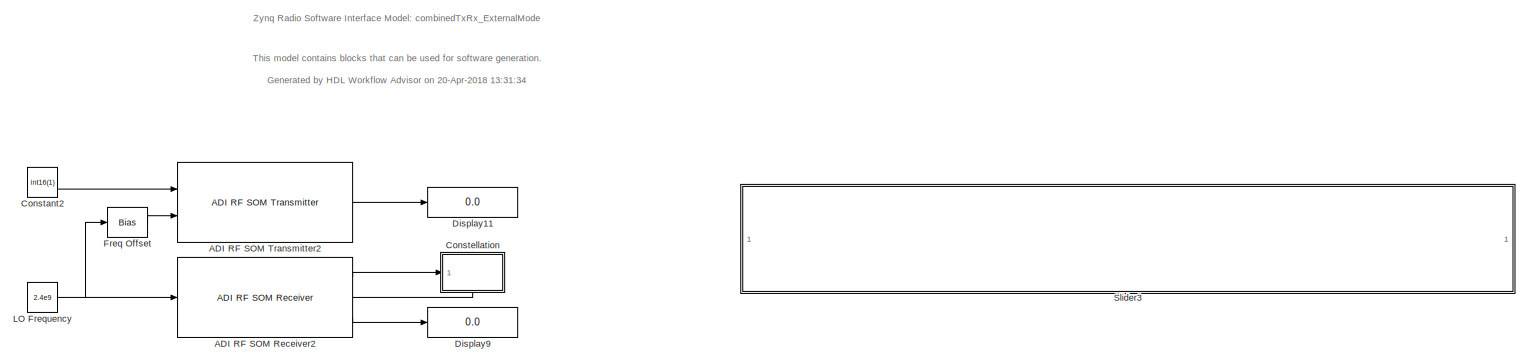
[diagram: root canvas - part 1/3, full width, top band]
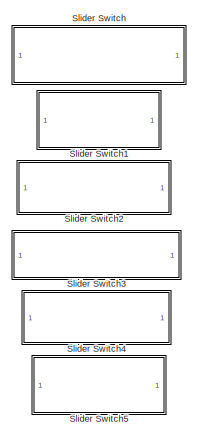
[diagram: root canvas - part 2/3, bottom left region]
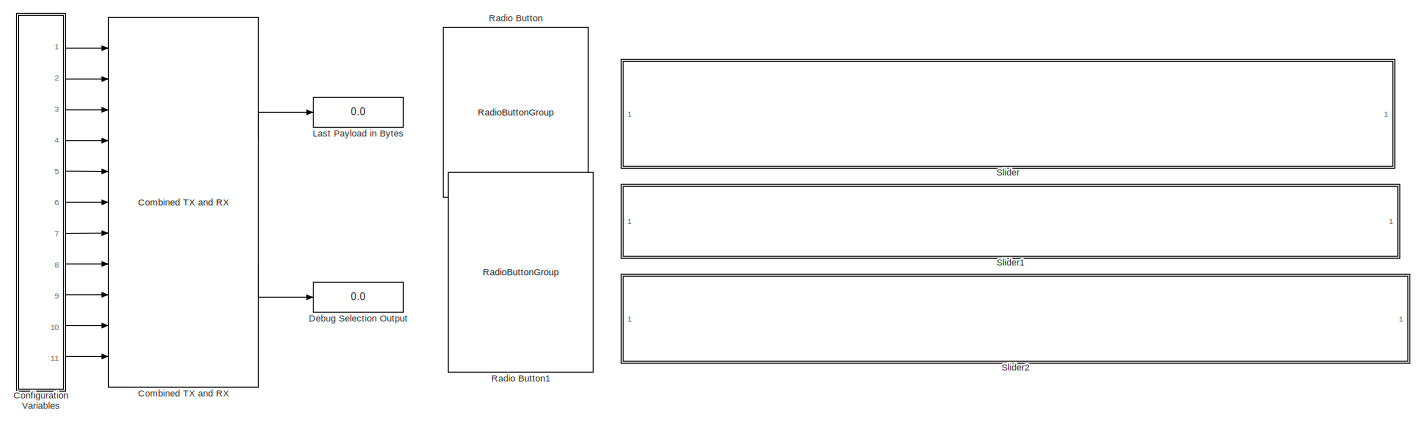
[diagram: root canvas - part 3/3, full width, bottom band]
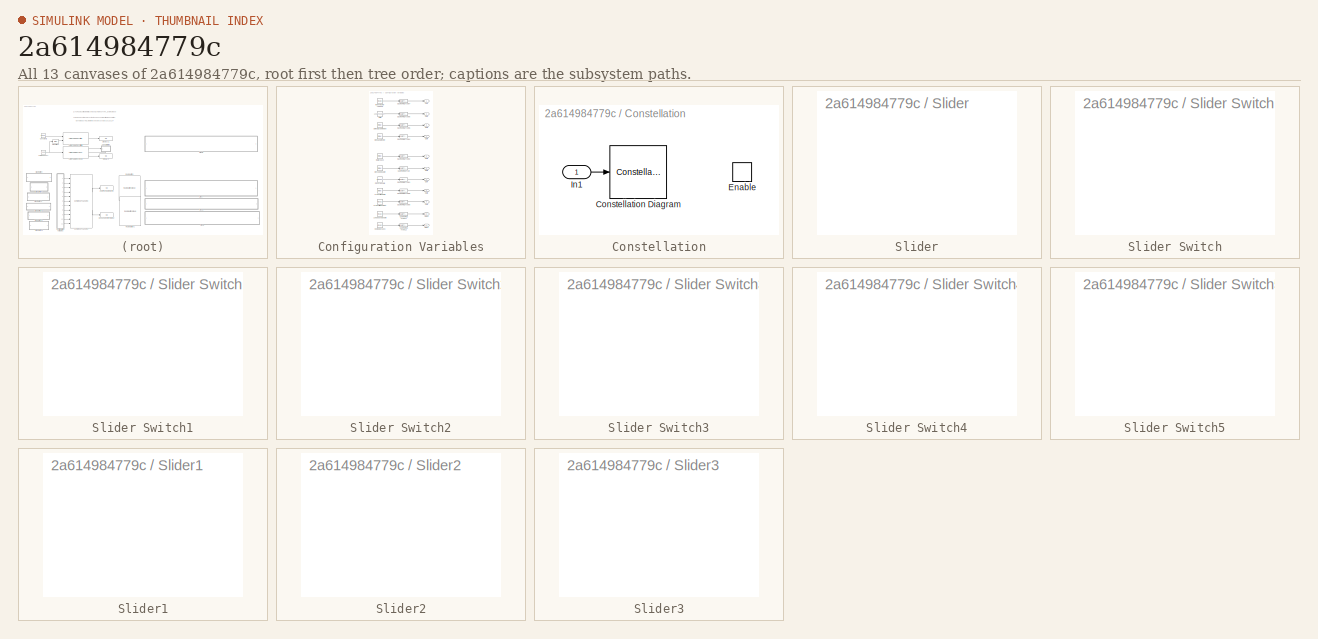
[diagram: thumbnail index - all 13 canvases of the model, root first then tree order]
MODEL slx_2a614984779c
KIND model
CONFIG AbsTol = auto
CONFIG EnableMultiTasking = off
CONFIG FixedStep = auto
CONFIG InitFcn = modelSettings\n
CONFIG MaxStep = auto
CONFIG MinStep = auto
CONFIG RelTol = 1e-3
CONFIG SampleTimeConstraint = Unconstrained
CONFIG Solver = VariableStepAuto
CONFIG SolverName = VariableStepAuto
CONFIG StartTime = 0.0
CONFIG StopTime = 10.0
BLOCK [Reference] ADI RF SOM Receiver2  REF=gm_combinedTxRx_ExternalMode_lib/ADI RF SOM
Receiver
  Ports = [1, 3]
  SourceBlock = gm_combinedTxRx_ExternalMode_lib/ADI RF SOM\nReceiver
  SourceType = comm.SDRRxZynqRadioLibIIO
BLOCK [Reference] ADI RF SOM Transmitter2  REF=gm_combinedTxRx_ExternalMode_lib/ADI RF SOM
Transmitter
  Ports = [2, 1]
  SourceBlock = gm_combinedTxRx_ExternalMode_lib/ADI RF SOM\nTransmitter
  SourceType = comm.SDRTxZynqRadioLibIIO
BLOCK [Reference] Combined TX and RX  REF=gm_combinedTxRx_ExternalMode_lib/Combined TX and RX
  Ports = [11, 2]
  SourceBlock = gm_combinedTxRx_ExternalMode_lib/Combined TX and RX
  SourceType = AXI4-Lite/AXI4 Interface
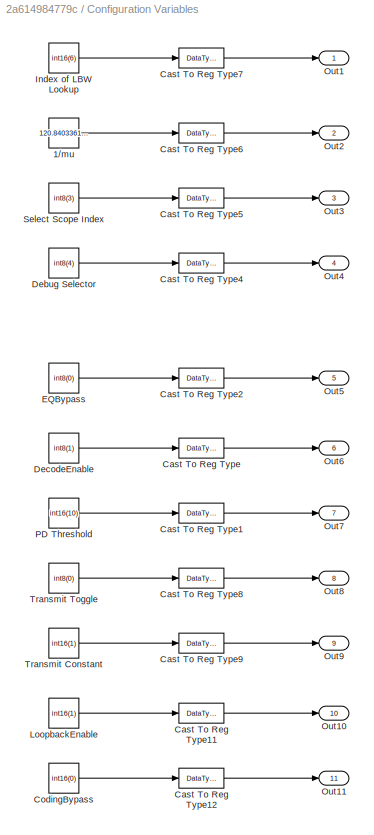
BLOCK [SubSystem] Configuration Variables
  Ports = [0, 11]
  RequestExecContextInheritance = off
  ShowPortLabels = none
  Variant = off
BLOCK [Constant] Configuration Variables/1//mu
  OutDataTypeStr = int16
  SampleTime = 1/500
  Value = 120.84033613445
BLOCK [DataTypeConversion] Configuration Variables/Cast To Reg Type
  OutDataTypeStr = uint32
  RndMeth = Floor
  SaturateOnIntegerOverflow = off
BLOCK [DataTypeConversion] Configuration Variables/Cast To Reg Type1
  OutDataTypeStr = uint32
  RndMeth = Floor
  SaturateOnIntegerOverflow = off
BLOCK [DataTypeConversion] Configuration Variables/Cast To Reg Type11
  OutDataTypeStr = uint32
  RndMeth = Floor
  SaturateOnIntegerOverflow = off
BLOCK [DataTypeConversion] Configuration Variables/Cast To Reg Type12
  OutDataTypeStr = uint32
  RndMeth = Floor
  SaturateOnIntegerOverflow = off
BLOCK [DataTypeConversion] Configuration Variables/Cast To Reg Type2
  OutDataTypeStr = uint32
  RndMeth = Floor
  SaturateOnIntegerOverflow = off
BLOCK [DataTypeConversion] Configuration Variables/Cast To Reg Type4
  OutDataTypeStr = uint32
  RndMeth = Floor
  SaturateOnIntegerOverflow = off
BLOCK [DataTypeConversion] Configuration Variables/Cast To Reg Type5
  OutDataTypeStr = uint32
  RndMeth = Floor
  SaturateOnIntegerOverflow = off
BLOCK [DataTypeConversion] Configuration Variables/Cast To Reg Type6
  OutDataTypeStr = uint32
  RndMeth = Floor
  SaturateOnIntegerOverflow = off
BLOCK [DataTypeConversion] Configuration Variables/Cast To Reg Type7
  OutDataTypeStr = uint32
  RndMeth = Floor
  SaturateOnIntegerOverflow = off
BLOCK [DataTypeConversion] Configuration Variables/Cast To Reg Type8
  OutDataTypeStr = uint32
  RndMeth = Floor
  SaturateOnIntegerOverflow = off
BLOCK [DataTypeConversion] Configuration Variables/Cast To Reg Type9
  OutDataTypeStr = uint32
  RndMeth = Floor
  SaturateOnIntegerOverflow = off
BLOCK [Constant] Configuration Variables/CodingBypass
  SampleTime = 1/500
  Value = int16(0)
BLOCK [Constant] Configuration Variables/Debug Selector
  SampleTime = 1/500
  Value = int8(4)
BLOCK [Constant] Configuration Variables/DecodeEnable
  SampleTime = 1/500
  Value = int8(1)
BLOCK [Constant] Configuration Variables/EQBypass
  SampleTime = 1/500
  Value = int8(0)
BLOCK [Constant] Configuration Variables/Index of LBW Lookup
  SampleTime = 1/500
  Value = int16(6)
BLOCK [Constant] Configuration Variables/LoopbackEnable
  SampleTime = 1/500
  Value = int16(1)
BLOCK [Outport] Configuration Variables/Out1
  IconDisplay = Port number
BLOCK [Outport] Configuration Variables/Out10
  IconDisplay = Port number
  Port = 10
BLOCK [Outport] Configuration Variables/Out11
  IconDisplay = Port number
  Port = 11
BLOCK [Outport] Configuration Variables/Out2
  IconDisplay = Port number
  Port = 2
BLOCK [Outport] Configuration Variables/Out3
  IconDisplay = Port number
  Port = 3
BLOCK [Outport] Configuration Variables/Out4
  IconDisplay = Port number
  Port = 4
BLOCK [Outport] Configuration Variables/Out5
  IconDisplay = Port number
  Port = 5
BLOCK [Outport] Configuration Variables/Out6
  IconDisplay = Port number
  Port = 6
BLOCK [Outport] Configuration Variables/Out7
  IconDisplay = Port number
  Port = 7
BLOCK [Outport] Configuration Variables/Out8
  IconDisplay = Port number
  Port = 8
BLOCK [Outport] Configuration Variables/Out9
  IconDisplay = Port number
  Port = 9
BLOCK [Constant] Configuration Variables/PD Threshold
  SampleTime = 1/500
  Value = int16(10)
BLOCK [Constant] Configuration Variables/Select Scope Index
  SampleTime = 1/500
  Value = int8(3)
BLOCK [Constant] Configuration Variables/Transmit Constant
  SampleTime = 1/500
  Value = int16(1)
BLOCK [Constant] Configuration Variables/Transmit Toggle
  SampleTime = 1/500
  Value = int8(0)
BLOCK [Constant] Constant2
  SampleTime = 1/500
  Value = int16(1)
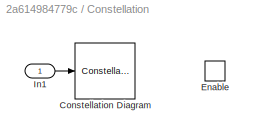
BLOCK [SubSystem] Constellation
  Ports = [1, 0, 1]
  RequestExecContextInheritance = off
  Variant = off
BLOCK [ConstellationDiagram] Constellation/Constellation Diagram
  Ports = [1]
  ScopeSpecificationString = comm.scopes.ConstellationDiagramBlockCfg('CurrentConfiguration', extmgr.ConfigurationSet(extmgr.Configuration('Core','General UI',true),extmgr.Configuration('Core','Source UI',true),extmgr.Configuration('Sources','WiredSimulink',true),extmgr.Configuration('Visuals','Constellation',true,'MinYLim','-7234','MaxYLim','7186','MinXLim','-7234','MaxXLim','7186','LineProperties',struct('DisplayName','','C...<+776ch>
BLOCK [EnablePort] Constellation/Enable
  Ports = []
BLOCK [Inport] Constellation/In1
  IconDisplay = Port number
BLOCK [Display] Debug Selection Output
  Decimation = 1
  Format = long
  Ports = [1]
BLOCK [Display] Display11
  Decimation = 1
  Ports = [1]
BLOCK [Display] Display9
  Decimation = 1
  Ports = [1]
BLOCK [Bias] Freq Offset
  Bias = 25.107604017217
  SaturateOnIntegerOverflow = off
BLOCK [Constant] LO Frequency
  SampleTime = 1/500
  Value = 2.4e9
BLOCK [Display] Last Payload in Bytes
  Decimation = 1
  Ports = [1]
BLOCK [RadioButtonGroup] Radio Button
  ButtonGroupName = Constellation Data Source
  LabelPosition = Top
  ModelName = Interface_Model
  SelectedLabel = After Frequency Recovery
  ShowInitialText = on
  WebBlockId = 317
BLOCK [RadioButtonGroup] Radio Button1
  ButtonGroupName = Constellation Data Source
  LabelPosition = Top
  ModelName = Interface_Model
  SelectedLabel = CRC Errors
  ShowInitialText = on
  WebBlockId = 335
BLOCK [SubSystem] Slider
  DialogController = hmiCreateDDGDialog
  IsWebBlock = on
  MaskHideContents = on
  Ports = []
  RequestExecContextInheritance = off
  Variant = off
BLOCK [SubSystem] Slider Switch
  DialogController = hmiCreateDDGDialog
  IsWebBlock = on
  MaskHideContents = on
  Ports = []
  RequestExecContextInheritance = off
  Variant = off
BLOCK [SubSystem] Slider Switch1
  DialogController = hmiCreateDDGDialog
  IsWebBlock = on
  MaskHideContents = on
  Ports = []
  RequestExecContextInheritance = off
  Variant = off
BLOCK [SubSystem] Slider Switch2
  DialogController = hmiCreateDDGDialog
  IsWebBlock = on
  MaskHideContents = on
  Ports = []
  RequestExecContextInheritance = off
  Variant = off
BLOCK [SubSystem] Slider Switch3
  DialogController = hmiCreateDDGDialog
  IsWebBlock = on
  MaskHideContents = on
  Ports = []
  RequestExecContextInheritance = off
  Variant = off
BLOCK [SubSystem] Slider Switch4
  DialogController = hmiCreateDDGDialog
  IsWebBlock = on
  MaskHideContents = on
  Ports = []
  RequestExecContextInheritance = off
  Variant = off
BLOCK [SubSystem] Slider Switch5
  DialogController = hmiCreateDDGDialog
  IsWebBlock = on
  MaskHideContents = on
  Ports = []
  RequestExecContextInheritance = off
  Variant = off
BLOCK [SubSystem] Slider1
  DialogController = hmiCreateDDGDialog
  IsWebBlock = on
  MaskHideContents = on
  Ports = []
  RequestExecContextInheritance = off
  Variant = off
BLOCK [SubSystem] Slider2
  DialogController = hmiCreateDDGDialog
  IsWebBlock = on
  MaskHideContents = on
  Ports = []
  RequestExecContextInheritance = off
  Variant = off
BLOCK [SubSystem] Slider3
  DialogController = hmiCreateDDGDialog
  IsWebBlock = on
  MaskHideContents = on
  Ports = []
  RequestExecContextInheritance = off
  Variant = off
ANNOTATION (root): This model contains blocks that can be used for software generation. Generated by HDL Workflow Advisor on 20-Apr-2018 13:31:34
ANNOTATION (root): Zynq Radio Software Interface Model: combinedTxRx_ExternalMode
LINE ADI RF SOM Receiver2:1 -> Constellation:1
LINE ADI RF SOM Receiver2:2 -> Constellation:enable
LINE ADI RF SOM Receiver2:3 -> Display9:1
LINE ADI RF SOM Transmitter2:1 -> Display11:1
LINE Combined TX and RX:1 -> Last Payload in Bytes:1
LINE Combined TX and RX:2 -> Debug Selection Output:1
LINE Configuration Variables/1//mu:1 -> Configuration Variables/Cast To Reg Type6:1
LINE Configuration Variables/Cast To Reg Type11:1 -> Configuration Variables/Out10:1
LINE Configuration Variables/Cast To Reg Type12:1 -> Configuration Variables/Out11:1
LINE Configuration Variables/Cast To Reg Type1:1 -> Configuration Variables/Out7:1
LINE Configuration Variables/Cast To Reg Type2:1 -> Configuration Variables/Out5:1
LINE Configuration Variables/Cast To Reg Type4:1 -> Configuration Variables/Out4:1
LINE Configuration Variables/Cast To Reg Type5:1 -> Configuration Variables/Out3:1
LINE Configuration Variables/Cast To Reg Type6:1 -> Configuration Variables/Out2:1
LINE Configuration Variables/Cast To Reg Type7:1 -> Configuration Variables/Out1:1
LINE Configuration Variables/Cast To Reg Type8:1 -> Configuration Variables/Out8:1
LINE Configuration Variables/Cast To Reg Type9:1 -> Configuration Variables/Out9:1
LINE Configuration Variables/Cast To Reg Type:1 -> Configuration Variables/Out6:1
LINE Configuration Variables/CodingBypass:1 -> Configuration Variables/Cast To Reg Type12:1
LINE Configuration Variables/Debug Selector:1 -> Configuration Variables/Cast To Reg Type4:1
LINE Configuration Variables/DecodeEnable:1 -> Configuration Variables/Cast To Reg Type:1
LINE Configuration Variables/EQBypass:1 -> Configuration Variables/Cast To Reg Type2:1
LINE Configuration Variables/Index of LBW Lookup:1 -> Configuration Variables/Cast To Reg Type7:1
LINE Configuration Variables/LoopbackEnable:1 -> Configuration Variables/Cast To Reg Type11:1
LINE Configuration Variables/PD Threshold:1 -> Configuration Variables/Cast To Reg Type1:1
LINE Configuration Variables/Select Scope Index:1 -> Configuration Variables/Cast To Reg Type5:1
LINE Configuration Variables/Transmit Constant:1 -> Configuration Variables/Cast To Reg Type9:1
LINE Configuration Variables/Transmit Toggle:1 -> Configuration Variables/Cast To Reg Type8:1
LINE Configuration Variables:1 -> Combined TX and RX:1
LINE Configuration Variables:10 -> Combined TX and RX:10
LINE Configuration Variables:11 -> Combined TX and RX:11
LINE Configuration Variables:2 -> Combined TX and RX:2
LINE Configuration Variables:3 -> Combined TX and RX:3
LINE Configuration Variables:4 -> Combined TX and RX:4
LINE Configuration Variables:5 -> Combined TX and RX:5
LINE Configuration Variables:6 -> Combined TX and RX:6
LINE Configuration Variables:7 -> Combined TX and RX:7
LINE Configuration Variables:8 -> Combined TX and RX:8
LINE Configuration Variables:9 -> Combined TX and RX:9
LINE Constant2:1 -> ADI RF SOM Transmitter2:1
LINE Constellation/In1:1 -> Constellation/Constellation Diagram:1
LINE Freq Offset:1 -> ADI RF SOM Transmitter2:2
NET LO Frequency:1 -> ADI RF SOM Receiver2:1, Freq Offset:1
note: NET lines group one-source signal fan-out (src -> all destinations, sorted); 1:1 wires keep LINE
